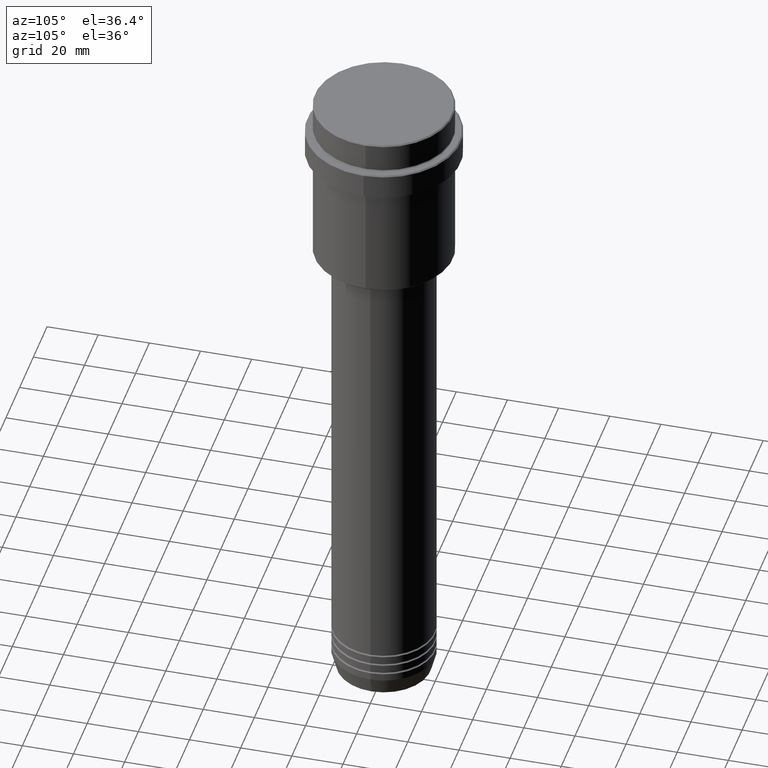
[diagram: clean part render]
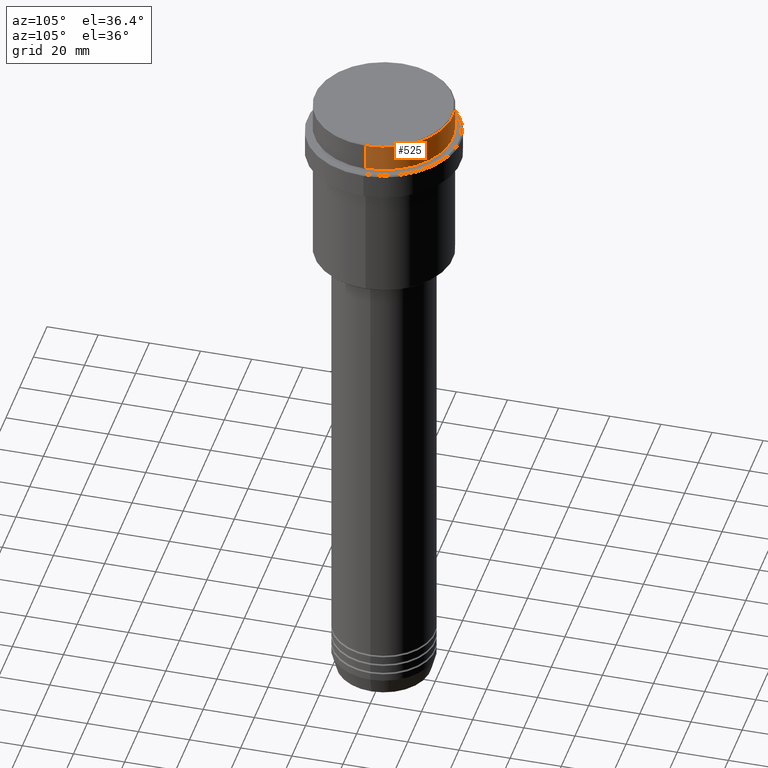
[diagram: same view with one face highlighted and labeled with its STEP entity id]
A machine part, auxiliary view. The second image highlights one B-rep face of the part: STEP entity #525.
In plain terms, the highlighted cylindrical surface (partial cylindrical patch) has radius 27 mm, axis along (-0, -0, 1).
Its self-contained STEP definition (entity closure, byte-faithful):
#92 = CARTESIAN_POINT ( 'NONE',  ( -26.99999999999999645, 3.306546357697853339E-15, -0.5000000000000038858 ) ) ;
#148 = EDGE_CURVE ( 'NONE', #225, #587, #649, .T. ) ;
#213 = ORIENTED_EDGE ( 'NONE', *, *, #625, .T. ) ;
#225 = VERTEX_POINT ( 'NONE', #682 ) ;
#242 = ORIENTED_EDGE ( 'NONE', *, *, #148, .T. ) ;
#316 = AXIS2_PLACEMENT_3D ( 'NONE', #1087, #1305, #874 ) ;
#426 = ORIENTED_EDGE ( 'NONE', *, *, #1241, .F. ) ;
#525 = ADVANCED_FACE ( 'NONE', ( #1363 ), #1379, .T. ) ;
#535 = CARTESIAN_POINT ( 'NONE',  ( 26.99999999999999645, 0.000000000000000000, 0.000000000000000000 ) ) ;
#587 = VERTEX_POINT ( 'NONE', #1040 ) ;
#625 = EDGE_CURVE ( 'NONE', #999, #872, #795, .T. ) ;
#649 = CIRCLE ( 'NONE', #814, 26.99999999999999645 ) ;
#682 = CARTESIAN_POINT ( 'NONE',  ( 26.99999999999999645, 0.000000000000000000, -11.00000000000000178 ) ) ;
#686 = EDGE_CURVE ( 'NONE', #587, #999, #995, .T. ) ;
#725 = CARTESIAN_POINT ( 'NONE',  ( 0.000000000000000000, 0.000000000000000000, 0.000000000000000000 ) ) ;
#795 = CIRCLE ( 'NONE', #316, 26.99999999999999645 ) ;
#814 = AXIS2_PLACEMENT_3D ( 'NONE', #1061, #1096, #1224 ) ;
#872 = VERTEX_POINT ( 'NONE', #1382 ) ;
#874 = DIRECTION ( 'NONE',  ( 1.000000000000000000, 0.000000000000000000, 0.000000000000000000 ) ) ;
#876 = AXIS2_PLACEMENT_3D ( 'NONE', #725, #1258, #949 ) ;
#930 = ORIENTED_EDGE ( 'NONE', *, *, #686, .T. ) ;
#949 = DIRECTION ( 'NONE',  ( 1.000000000000000000, 0.000000000000000000, 0.000000000000000000 ) ) ;
#980 = DIRECTION ( 'NONE',  ( -0.000000000000000000, -0.000000000000000000, 1.000000000000000000 ) ) ;
#995 = LINE ( 'NONE', #1298, #1333 ) ;
#999 = VERTEX_POINT ( 'NONE', #92 ) ;
#1040 = CARTESIAN_POINT ( 'NONE',  ( -26.99999999999999645, 3.306546357697853339E-15, -11.00000000000000178 ) ) ;
#1061 = CARTESIAN_POINT ( 'NONE',  ( 0.000000000000000000, 0.000000000000000000, -11.00000000000000178 ) ) ;
#1074 = LINE ( 'NONE', #535, #1112 ) ;
#1087 = CARTESIAN_POINT ( 'NONE',  ( 0.000000000000000000, 0.000000000000000000, -0.5000000000000038858 ) ) ;
#1096 = DIRECTION ( 'NONE',  ( -0.000000000000000000, -0.000000000000000000, 1.000000000000000000 ) ) ;
#1112 = VECTOR ( 'NONE', #980, 1000.000000000000000 ) ;
#1220 = EDGE_LOOP ( 'NONE', ( #242, #930, #213, #426 ) ) ;
#1224 = DIRECTION ( 'NONE',  ( 1.000000000000000000, 0.000000000000000000, 0.000000000000000000 ) ) ;
#1241 = EDGE_CURVE ( 'NONE', #225, #872, #1074, .T. ) ;
#1258 = DIRECTION ( 'NONE',  ( -0.000000000000000000, -0.000000000000000000, 1.000000000000000000 ) ) ;
#1298 = CARTESIAN_POINT ( 'NONE',  ( -26.99999999999999645, 3.306546357697853339E-15, 0.000000000000000000 ) ) ;
#1305 = DIRECTION ( 'NONE',  ( 0.000000000000000000, 0.000000000000000000, -1.000000000000000000 ) ) ;
#1312 = DIRECTION ( 'NONE',  ( -0.000000000000000000, -0.000000000000000000, 1.000000000000000000 ) ) ;
#1333 = VECTOR ( 'NONE', #1312, 1000.000000000000000 ) ;
#1363 = FACE_OUTER_BOUND ( 'NONE', #1220, .T. ) ;
#1379 = CYLINDRICAL_SURFACE ( 'NONE', #876, 26.99999999999999645 ) ;
#1382 = CARTESIAN_POINT ( 'NONE',  ( 26.99999999999999645, 0.000000000000000000, -0.5000000000000038858 ) ) ;